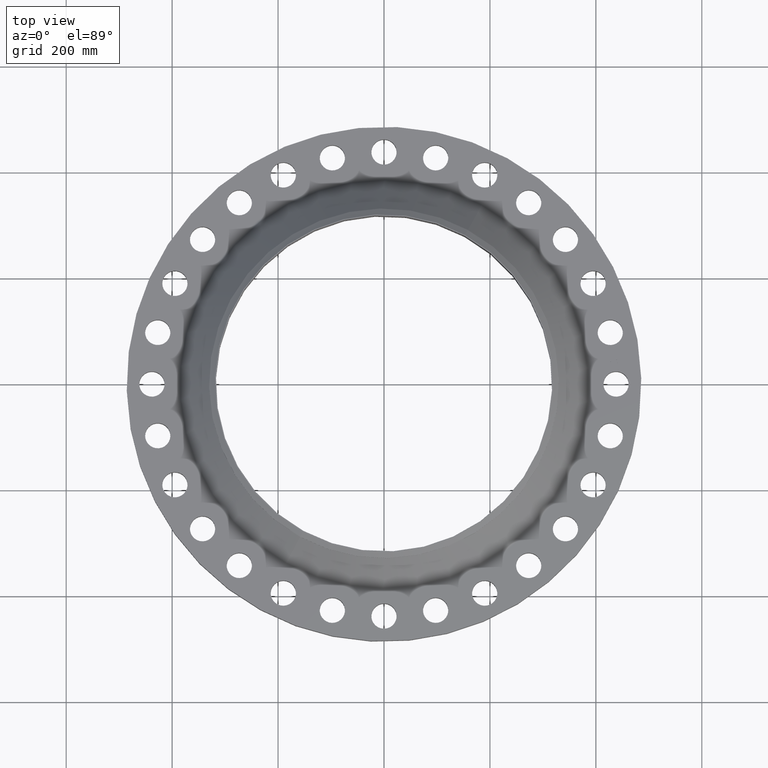
[diagram: clean part render]
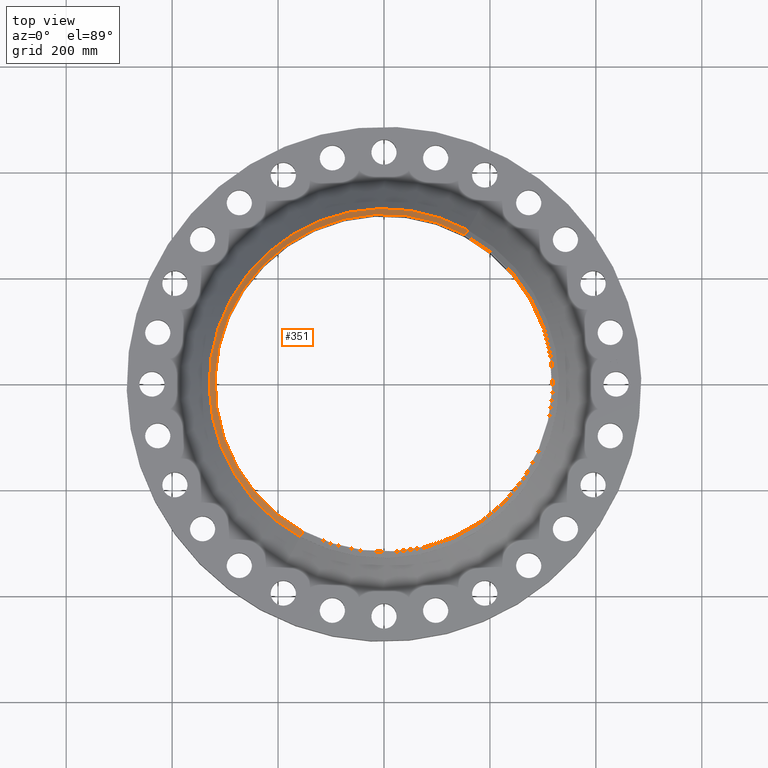
[diagram: same view with one face highlighted and labeled with its STEP entity id]
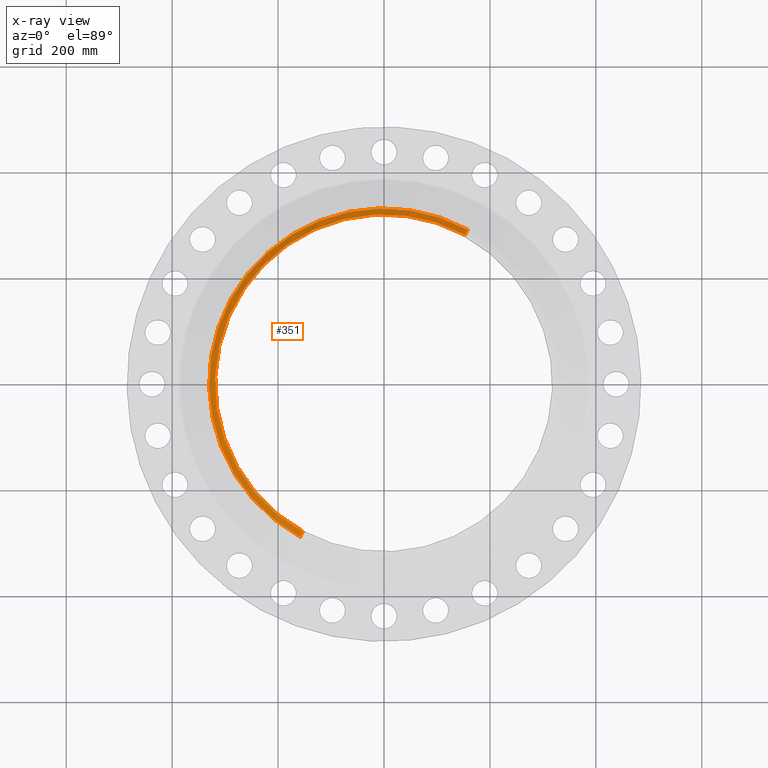
[diagram: x-ray of the same camera — body ghosted, the highlighted face saturated]
A machine part, top view. The second image highlights one B-rep face of the part: STEP entity #351.
The next image is the same camera in x-ray: the body ghosted, the highlighted face saturated — about 0% of this face is hidden behind the body in this view.
In plain terms, the highlighted conical surface has half-angle 52.5 deg.
Its self-contained STEP definition (entity closure, byte-faithful):
#275=CARTESIAN_POINT('Vertex',(-158.306312848,-289.777761937,139.047078847)) ;
#282=CARTESIAN_POINT('Vertex',(158.306312848,289.777761937,139.047078847)) ;
#297=CARTESIAN_POINT('Axis2P3D Location',(0.,0.,139.047078847)) ;
#309=CARTESIAN_POINT('Axis2P3D Location',(0.,0.,147.574000001)) ;
#314=CARTESIAN_POINT('Line Origine',(157.016928991,287.417560619,141.110754958)) ;
#318=CARTESIAN_POINT('Vertex',(152.97869655,280.025625718,147.574000001)) ;
#325=CARTESIAN_POINT('Vertex',(-152.97869655,-280.025625718,147.574000001)) ;
#328=CARTESIAN_POINT('Line Origine',(-157.016928991,-287.417560619,141.110754958)) ;
#340=CARTESIAN_POINT('Axis2P3D Location',(0.,0.,147.574000001)) ;
#298=DIRECTION('Axis2P3D Direction',(0.,0.,-1.)) ;
#310=DIRECTION('Axis2P3D Direction',(-0.,-0.,-1.)) ;
#311=DIRECTION('Axis2P3D XDirection',(0.479425538604,0.87758256189,0.)) ;
#315=DIRECTION('Vector Direction',(0.380353852473,0.696233056857,-0.608761429009)) ;
#329=DIRECTION('Vector Direction',(-0.380353852473,-0.696233056857,-0.608761429009)) ;
#341=DIRECTION('Axis2P3D Direction',(0.,-0.,-1.)) ;
#299=AXIS2_PLACEMENT_3D('Circle Axis2P3D',#297,#298,$) ;
#312=AXIS2_PLACEMENT_3D('Cone Axis2P3D',#309,#310,#311) ;
#342=AXIS2_PLACEMENT_3D('Circle Axis2P3D',#340,#341,$) ;
#346=ORIENTED_EDGE('',*,*,#332,.F.) ;
#347=ORIENTED_EDGE('',*,*,#344,.T.) ;
#348=ORIENTED_EDGE('',*,*,#320,.T.) ;
#349=ORIENTED_EDGE('',*,*,#301,.F.) ;
#316=VECTOR('Line Direction',#315,1.) ;
#330=VECTOR('Line Direction',#329,1.) ;
#351=ADVANCED_FACE('PartBody',(#350),#313,.T.) ;
#300=CIRCLE('generated circle',#299,330.200000001) ;
#343=CIRCLE('generated circle',#342,319.087500001) ;
#313=CONICAL_SURFACE('Cone',#312,319.087500001,0.916297857297) ;
#301=EDGE_CURVE('',#276,#283,#300,.T.) ;
#320=EDGE_CURVE('',#319,#283,#317,.T.) ;
#332=EDGE_CURVE('',#326,#276,#331,.T.) ;
#344=EDGE_CURVE('',#326,#319,#343,.T.) ;
#345=EDGE_LOOP('',(#346,#347,#348,#349)) ;
#350=FACE_OUTER_BOUND('',#345,.T.) ;
#317=LINE('Line',#314,#316) ;
#331=LINE('Line',#328,#330) ;
#276=VERTEX_POINT('',#275) ;
#283=VERTEX_POINT('',#282) ;
#319=VERTEX_POINT('',#318) ;
#326=VERTEX_POINT('',#325) ;